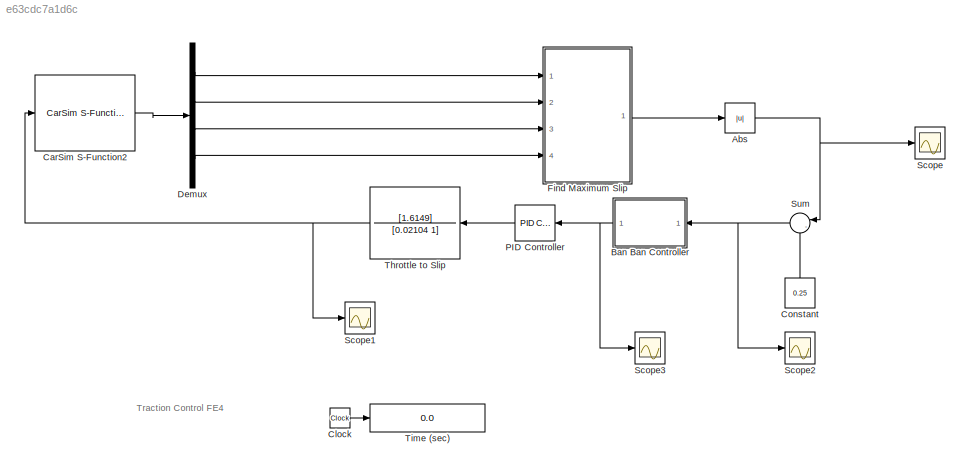
MODEL slx_e63cdc7a1d6c
KIND model
CONFIG AbsTol = 1e-6
CONFIG EnableMultiTasking = off
CONFIG FixedStep = 0.001
CONFIG MaxStep = auto
CONFIG MinStep = auto
CONFIG RelTol = 1e-3
CONFIG SampleTimeConstraint = Unconstrained
CONFIG Solver = ode45
CONFIG SolverName = ode45
CONFIG StartTime = 0
CONFIG StopTime = 45
BLOCK [Abs] Abs
  SaturateOnIntegerOverflow = off
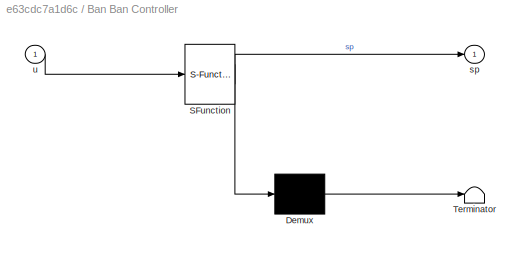
BLOCK [SubSystem] Ban Ban Controller
  ErrorFcn = Stateflow.Translate.translate
  PermitHierarchicalResolution = ExplicitOnly
  Ports = [1, 1]
  RequestExecContextInheritance = off
  SFBlockType = MATLAB Function
  TreatAsAtomicUnit = on
  Variant = off
BLOCK [Demux] Ban Ban Controller/ Demux 
  Outputs = 1
  Ports = [1, 1]
BLOCK [S-Function] Ban Ban Controller/ SFunction 
  EnableBusSupport = on
  FunctionName = sf_sfun
  PortCounts = [1 2]
  Ports = [1, 2]
  SFcnIsStateOwnerBlock = off
  SFunctionDeploymentMode = off
  Tag = Stateflow S-Function TCS_SLX_FE4 2
BLOCK [Terminator] Ban Ban Controller/ Terminator 
BLOCK [Outport] Ban Ban Controller/sp
  IconDisplay = Port number
BLOCK [Inport] Ban Ban Controller/u
  IconDisplay = Port number
BLOCK [Reference] CarSim S-Function2  REF=Solver_SF/CarSim S-Function2
  AttributesFormatString = Vehicle Code: %<VehicleCode>
  Ports = [1, 1]
  Priority = 1
  SourceBlock = Solver_SF/CarSim S-Function2
  SourceType = Vehicle math model library
BLOCK [Clock] Clock
BLOCK [Constant] Constant
  Value = 0.25
BLOCK [Demux] Demux
  DisplayOption = bar
  Ports = [1, 4]
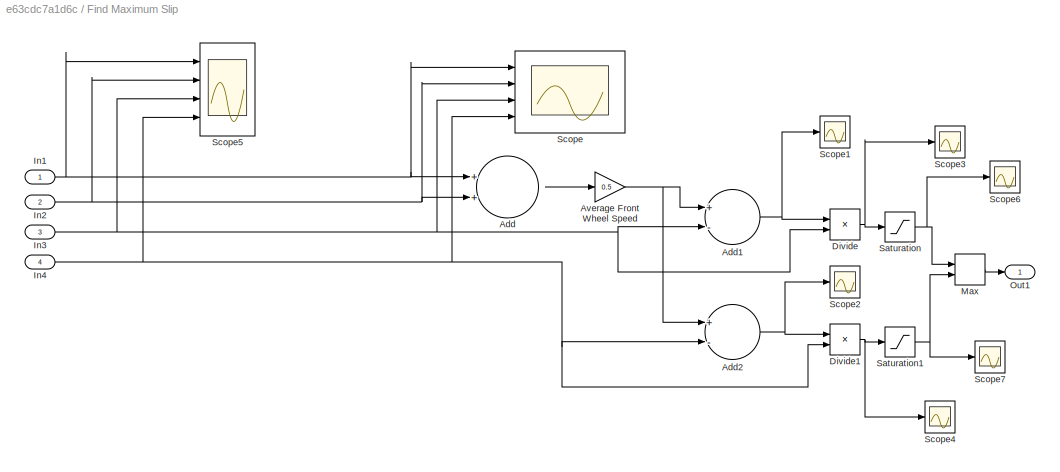
BLOCK [SubSystem] Find Maximum Slip
  Ports = [4, 1]
  RequestExecContextInheritance = off
  Variant = off
BLOCK [Sum] Find Maximum Slip/Add
  InputSameDT = off
  OutDataTypeStr = Inherit: Inherit via internal rule
  Ports = [2, 1]
  SaturateOnIntegerOverflow = off
BLOCK [Sum] Find Maximum Slip/Add1
  InputSameDT = off
  Inputs = +-
  OutDataTypeStr = Inherit: Inherit via internal rule
  Ports = [2, 1]
  SaturateOnIntegerOverflow = off
BLOCK [Sum] Find Maximum Slip/Add2
  InputSameDT = off
  Inputs = +-
  OutDataTypeStr = Inherit: Inherit via internal rule
  Ports = [2, 1]
  SaturateOnIntegerOverflow = off
BLOCK [Gain] Find Maximum Slip/Average Front Wheel Speed
  Gain = 0.5
  OutDataTypeStr = Inherit: Inherit via internal rule
  ParamDataTypeStr = Inherit: Inherit via internal rule
  SaturateOnIntegerOverflow = off
BLOCK [Product] Find Maximum Slip/Divide
  InputSameDT = off
  Inputs = */
  OutDataTypeStr = Inherit: Inherit via internal rule
  OutMax = [1]
  OutMin = [0]
  Ports = [2, 1]
  RndMeth = Floor
  SaturateOnIntegerOverflow = off
BLOCK [Product] Find Maximum Slip/Divide1
  InputSameDT = off
  Inputs = */
  OutDataTypeStr = Inherit: Inherit via internal rule
  OutMax = [1]
  OutMin = [0]
  Ports = [2, 1]
  RndMeth = Floor
  SaturateOnIntegerOverflow = off
BLOCK [Inport] Find Maximum Slip/In1
  IconDisplay = Port number
BLOCK [Inport] Find Maximum Slip/In2
  IconDisplay = Port number
  Port = 2
BLOCK [Inport] Find Maximum Slip/In3
  IconDisplay = Port number
  Port = 3
BLOCK [Inport] Find Maximum Slip/In4
  IconDisplay = Port number
  Port = 4
BLOCK [MinMax] Find Maximum Slip/Max
  Function = max
  InputSameDT = off
  Inputs = 2
  Ports = [2, 1]
  SaturateOnIntegerOverflow = off
BLOCK [Outport] Find Maximum Slip/Out1
  IconDisplay = Port number
BLOCK [Saturate] Find Maximum Slip/Saturation
  InputPortMap = u0
  LowerLimit = 0
  Ports = [1, 1]
  UpperLimit = 1
BLOCK [Saturate] Find Maximum Slip/Saturation1
  InputPortMap = u0
  LowerLimit = 0
  Ports = [1, 1]
  UpperLimit = 1
BLOCK [Scope] Find Maximum Slip/Scope
  NumInputPorts = 4
  Ports = [4]
  ScopeSpecificationString = Simulink.scopes.TimeScopeBlockCfg('CurrentConfiguration', extmgr.ConfigurationSet(extmgr.Configuration('Core','General UI',true),extmgr.Configuration('Core','Source UI',true),extmgr.Configuration('Sources','WiredSimulink',true,'DataLoggingVariableName','ScopeData4'),extmgr.Configuration('Visuals','Time Domain',true,'SerializedDisplays',{struct('MinYLimReal','-13.06898','MaxYLimReal','116.22998','Y...<+1470ch>
BLOCK [Scope] Find Maximum Slip/Scope1
  NumInputPorts = 1
  Ports = [1]
  ScopeSpecificationString = Simulink.scopes.TimeScopeBlockCfg('CurrentConfiguration', extmgr.ConfigurationSet(extmgr.Configuration('Core','General UI',true),extmgr.Configuration('Core','Source UI',true),extmgr.Configuration('Sources','WiredSimulink',true,'DataLoggingVariableName','ScopeData5'),extmgr.Configuration('Visuals','Time Domain',true,'SerializedDisplays',{struct('MinYLimReal','-29.94403','MaxYLimReal','42.90907','YL...<+1454ch>
BLOCK [Scope] Find Maximum Slip/Scope2
  NumInputPorts = 1
  Ports = [1]
  ScopeSpecificationString = Simulink.scopes.TimeScopeBlockCfg('CurrentConfiguration', extmgr.ConfigurationSet(extmgr.Configuration('Core','General UI',true),extmgr.Configuration('Core','Source UI',true),extmgr.Configuration('Sources','WiredSimulink',true,'DataLoggingVariableName','ScopeData6'),extmgr.Configuration('Visuals','Time Domain',true,'SerializedDisplays',{struct('MinYLimReal','-25.4436','MaxYLimReal','6.56715','YLab...<+1418ch>
BLOCK [Scope] Find Maximum Slip/Scope3
  NumInputPorts = 1
  Ports = [1]
  ScopeSpecificationString = Simulink.scopes.TimeScopeBlockCfg('CurrentConfiguration', extmgr.ConfigurationSet(extmgr.Configuration('Core','General UI',true),extmgr.Configuration('Core','Source UI',true),extmgr.Configuration('Sources','WiredSimulink',true,'DataLoggingVariableName','ScopeData7'),extmgr.Configuration('Visuals','Time Domain',true,'SerializedDisplays',{struct('MinYLimReal','-0.59491','MaxYLimReal','0.19838','YLab...<+1464ch>
BLOCK [Scope] Find Maximum Slip/Scope4
  NumInputPorts = 1
  Ports = [1]
  ScopeSpecificationString = Simulink.scopes.TimeScopeBlockCfg('CurrentConfiguration', extmgr.ConfigurationSet(extmgr.Configuration('Core','General UI',true),extmgr.Configuration('Core','Source UI',true),extmgr.Configuration('Sources','WiredSimulink',true,'DataLoggingVariableName','ScopeData8'),extmgr.Configuration('Visuals','Time Domain',true,'SerializedDisplays',{struct('MinYLimReal','-0.57428','MaxYLimReal','0.17941','YLab...<+1440ch>
BLOCK [Scope] Find Maximum Slip/Scope5
  NumInputPorts = 4
  Ports = [4]
  ScopeSpecificationString = Simulink.scopes.TimeScopeBlockCfg('CurrentConfiguration', extmgr.ConfigurationSet(extmgr.Configuration('Core','General UI',true),extmgr.Configuration('Core','Source UI',true),extmgr.Configuration('Sources','WiredSimulink',true,'DataLoggingVariableName','ScopeData9'),extmgr.Configuration('Visuals','Time Domain',true,'SerializedDisplays',{struct('MinYLimReal','-17.28011','MaxYLimReal','115.19187','Y...<+3414ch>
BLOCK [Scope] Find Maximum Slip/Scope6
  NumInputPorts = 1
  Ports = [1]
  ScopeSpecificationString = Simulink.scopes.TimeScopeBlockCfg('CurrentConfiguration', extmgr.ConfigurationSet(extmgr.Configuration('Core','General UI',true),extmgr.Configuration('Core','Source UI',true),extmgr.Configuration('Sources','WiredSimulink',true,'DataLoggingVariableName','ScopeData10'),extmgr.Configuration('Visuals','Time Domain',true,'SerializedDisplays',{struct('MinYLimReal','-0.01488','MaxYLimReal','0.13393','YLa...<+1469ch>
BLOCK [Scope] Find Maximum Slip/Scope7
  NumInputPorts = 1
  Ports = [1]
  ScopeSpecificationString = Simulink.scopes.TimeScopeBlockCfg('CurrentConfiguration', extmgr.ConfigurationSet(extmgr.Configuration('Core','General UI',true),extmgr.Configuration('Core','Source UI',true),extmgr.Configuration('Sources','WiredSimulink',true,'DataLoggingVariableName','ScopeData11'),extmgr.Configuration('Visuals','Time Domain',true,'SerializedDisplays',{struct('MinYLimReal','-0.01301','MaxYLimReal','0.11705','YLa...<+1470ch>
BLOCK [Reference] PID Controller  REF=simulink/Continuous/PID Controller
  Ports = [1, 1]
  SourceBlock = simulink/Continuous/PID Controller
  SourceProductBaseCode = SL
  SourceProductName = Simulink
  SourceType = PID 1dof
BLOCK [Scope] Scope
  NumInputPorts = 1
  Ports = [1]
  ScopeSpecificationString = Simulink.scopes.TimeScopeBlockCfg('CurrentConfiguration', extmgr.ConfigurationSet(extmgr.Configuration('Core','General UI',true),extmgr.Configuration('Core','Source UI',true),extmgr.Configuration('Sources','WiredSimulink',true),extmgr.Configuration('Visuals','Time Domain',true,'SerializedDisplays',{struct('MinYLimReal','-0.01488','MaxYLimReal','0.13393','YLabelReal','','MinYLimMag','0.00000','MaxY...<+1403ch>
BLOCK [Scope] Scope1
  NumInputPorts = 1
  Ports = [1]
  ScopeSpecificationString = Simulink.scopes.TimeScopeBlockCfg('CurrentConfiguration', extmgr.ConfigurationSet(extmgr.Configuration('Core','General UI',true),extmgr.Configuration('Core','Source UI',true),extmgr.Configuration('Sources','WiredSimulink',true,'DataLoggingVariableName','ScopeData1'),extmgr.Configuration('Visuals','Time Domain',true,'SerializedDisplays',{struct('MinYLimReal','-1.00000','MaxYLimReal','1.00000','YLab...<+1461ch>
BLOCK [Scope] Scope2
  NumInputPorts = 1
  Ports = [1]
  ScopeSpecificationString = Simulink.scopes.TimeScopeBlockCfg('CurrentConfiguration', extmgr.ConfigurationSet(extmgr.Configuration('Core','General UI',true),extmgr.Configuration('Core','Source UI',true),extmgr.Configuration('Sources','WiredSimulink',true,'DataLoggingVariableName','ScopeData2'),extmgr.Configuration('Visuals','Time Domain',true,'SerializedDisplays',{struct('MinYLimReal','0.11607','MaxYLimReal','0.26488','YLabe...<+1440ch>
BLOCK [Scope] Scope3
  NumInputPorts = 1
  Ports = [1]
  ScopeSpecificationString = Simulink.scopes.TimeScopeBlockCfg('CurrentConfiguration', extmgr.ConfigurationSet(extmgr.Configuration('Core','General UI',true),extmgr.Configuration('Core','Source UI',true),extmgr.Configuration('Sources','WiredSimulink',true,'DataLoggingVariableName','ScopeData3'),extmgr.Configuration('Visuals','Time Domain',true,'SerializedDisplays',{struct('MinYLimReal','-1.00000','MaxYLimReal','1.00000','YLab...<+1457ch>
BLOCK [Sum] Sum
  IconShape = round
  InputSameDT = off
  Inputs = |-+
  OutDataTypeStr = Inherit: Inherit via internal rule
  Ports = [2, 1]
  SaturateOnIntegerOverflow = off
BLOCK [TransferFcn] Throttle to Slip
  Denominator = [0.02104 1]
  Numerator = [1.6149]
BLOCK [Display] Time (sec)
  Decimation = 100
  Format = bank
  Ports = [1]
ANNOTATION (root): Traction Control FE4
NET Abs:1 -> Scope:1, Sum:1
NET Ban Ban Controller:1 -> PID Controller:1, Scope3:1
LINE CarSim S-Function2:1 -> Demux:1
LINE Clock:1 -> Time (sec):1
LINE Constant:1 -> Sum:2
LINE Demux:1 -> Find Maximum Slip:1
LINE Demux:2 -> Find Maximum Slip:2
LINE Demux:3 -> Find Maximum Slip:3
LINE Demux:4 -> Find Maximum Slip:4
NET Find Maximum Slip/Add1:1 -> Find Maximum Slip/Divide:1, Find Maximum Slip/Scope1:1
NET Find Maximum Slip/Add2:1 -> Find Maximum Slip/Divide1:1, Find Maximum Slip/Scope2:1
LINE Find Maximum Slip/Add:1 -> Find Maximum Slip/Average Front Wheel Speed:1
NET Find Maximum Slip/Average Front Wheel Speed:1 -> Find Maximum Slip/Add1:1, Find Maximum Slip/Add2:1
NET Find Maximum Slip/Divide1:1 -> Find Maximum Slip/Saturation1:1, Find Maximum Slip/Scope4:1
NET Find Maximum Slip/Divide:1 -> Find Maximum Slip/Saturation:1, Find Maximum Slip/Scope3:1
NET Find Maximum Slip/In1:1 -> Find Maximum Slip/Add:1, Find Maximum Slip/Scope5:1, Find Maximum Slip/Scope:1
NET Find Maximum Slip/In2:1 -> Find Maximum Slip/Add:2, Find Maximum Slip/Scope5:2, Find Maximum Slip/Scope:2
NET Find Maximum Slip/In3:1 -> Find Maximum Slip/Add1:2, Find Maximum Slip/Divide:2, Find Maximum Slip/Scope5:3, Find Maximum Slip/Scope:3
NET Find Maximum Slip/In4:1 -> Find Maximum Slip/Add2:2, Find Maximum Slip/Divide1:2, Find Maximum Slip/Scope5:4, Find Maximum Slip/Scope:4
LINE Find Maximum Slip/Max:1 -> Find Maximum Slip/Out1:1
NET Find Maximum Slip/Saturation1:1 -> Find Maximum Slip/Max:2, Find Maximum Slip/Scope7:1
NET Find Maximum Slip/Saturation:1 -> Find Maximum Slip/Max:1, Find Maximum Slip/Scope6:1
LINE Find Maximum Slip:1 -> Abs:1
LINE PID Controller:1 -> Throttle to Slip:1
NET Sum:1 -> Ban Ban Controller:1, Scope2:1
NET Throttle to Slip:1 -> CarSim S-Function2:1, Scope1:1
note: NET lines group one-source signal fan-out (src -> all destinations, sorted); 1:1 wires keep LINE
CHART Ban Ban Controller states=1 transitions=1
  STATE_LABEL 'eML_blk_kernel()'
  STATE_LABEL 'SCRIPT:\nfunction sp = fcn(u)\n%Only active while slip signal is negtive \nif u<0\n    u_1 = u;\nelse \n    u_1 = 0;\nend\n\nsp = u_1;'
